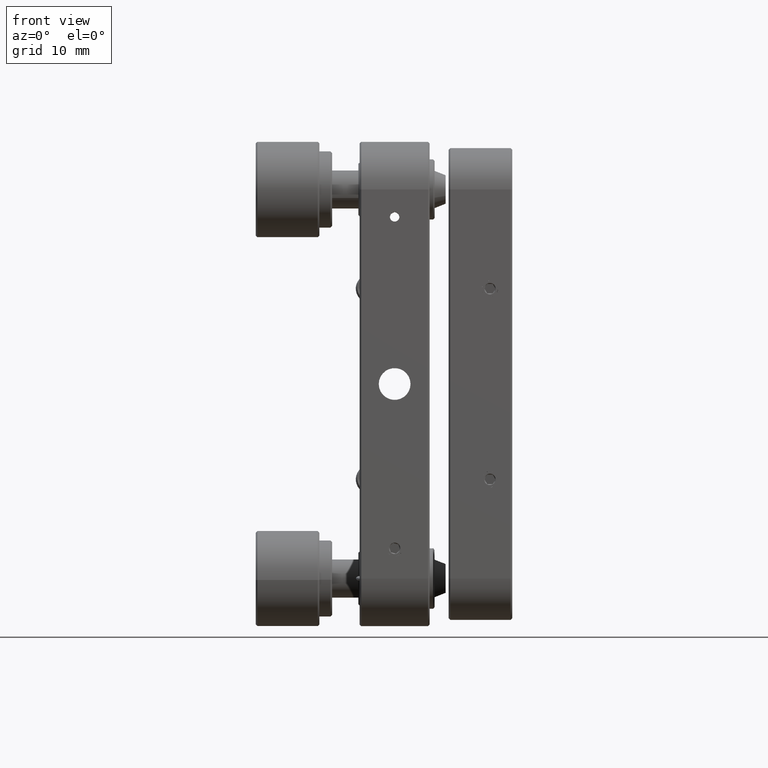
[diagram: clean part render]
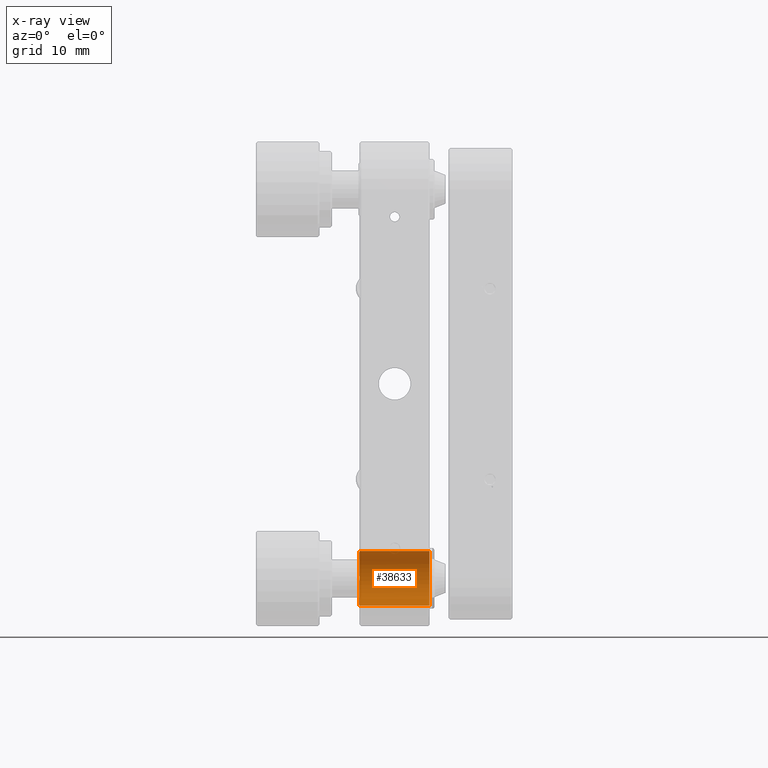
[diagram: x-ray — body ghosted, one internal face saturated and labeled with its STEP entity id]
A machine part, front view, then the same camera in x-ray: the body is ghosted and one INTERNAL B-rep face — a face not visible from any outside direction — is saturated and labeled: STEP entity #38633.
In plain terms, the highlighted face is a freeform B-spline surface patch.
Its self-contained STEP definition (entity closure, byte-faithful):
#31 = CARTESIAN_POINT ( 'NONE',  ( 5.499999999999999112, 33.22074554546956193, -27.13962722726521193 ) ) ;
#1410 = CARTESIAN_POINT ( 'NONE',  ( -5.500000000000001776, 30.60000000000001563, -26.29999999999999716 ) ) ;
#1648 = CARTESIAN_POINT ( 'NONE',  ( -5.500000000000000888, 33.22074554546957614, -27.13962722726523680 ) ) ;
#2282 = DIRECTION ( 'NONE',  ( -1.000000000000000000, 0.000000000000000000, 0.000000000000000000 ) ) ;
#5007 = CARTESIAN_POINT ( 'NONE',  ( -6.601200000000005730, 26.30000000000001492, -34.89999999999999147 ) ) ;
#5014 = CARTESIAN_POINT ( 'NONE',  ( -5.500000000000001776, 31.65349036446538733, -26.39235857689802245 ) ) ;
#5250 = CARTESIAN_POINT ( 'NONE',  ( -5.500000000000002665, 30.60000000000001563, -34.89999999999999858 ) ) ;
#5492 = CARTESIAN_POINT ( 'NONE',  ( -5.500000000000000000, 31.10675985985036363, -34.89999999999999147 ) ) ;
#5543 = CARTESIAN_POINT ( 'NONE',  ( 5.500000000000000000, 34.80764142310197684, -31.65349036446535180 ) ) ;
#5726 = CARTESIAN_POINT ( 'NONE',  ( -5.500000000000000888, 34.80764142310196974, -31.65349036446535891 ) ) ;
#6032 = CARTESIAN_POINT ( 'NONE',  ( -5.500000000000001776, 30.60000000000001563, -26.29999999999999716 ) ) ;
#7874 = B_SPLINE_CURVE_WITH_KNOTS ( 'NONE', 3,
 ( #18974, #44591, #11777, #18247, #31, #26906, #42191, #30504, #45297, #13207, #5543, #12971, #30971, #45067, #41710, #34543, #20399, #23527 ),
 .UNSPECIFIED., .F., .F.,
 ( 4, 2, 2, 2, 2, 2, 2, 2, 4 ),
 ( 0.000000000000000000, 1.688606051304519129, 3.377212102609038258, 5.065818153913557609, 6.754424205218076516, 8.443030256522582988, 10.13163630782709035, 11.82024235913159771, 13.50884841043610507 ),
 .UNSPECIFIED. ) ;
#7888 = CARTESIAN_POINT ( 'NONE',  ( -6.601200000000003953, 30.60000000000001563, -26.29999999999999716 ) ) ;
#8372 = CARTESIAN_POINT ( 'NONE',  ( -6.601200000000003953, 30.60000000000001563, -34.89999999999999147 ) ) ;
#8601 = ORIENTED_EDGE ( 'NONE', *, *, #13437, .F. ) ;
#9469 = CARTESIAN_POINT ( 'NONE',  ( -2.602085213965210642E-15, 30.60000000000001563, -26.29999999999999716 ) ) ;
#11777 = CARTESIAN_POINT ( 'NONE',  ( 5.499999999999999112, 31.65349036446538733, -26.39235857689802955 ) ) ;
#12194 = CARTESIAN_POINT ( 'NONE',  ( 6.601199999999997736, 26.30000000000001492, -26.29999999999999716 ) ) ;
#12431 = CARTESIAN_POINT ( 'NONE',  ( 6.601199999999997736, 26.30000000000001492, -34.89999999999999147 ) ) ;
#12438 = CARTESIAN_POINT ( 'NONE',  ( -5.500000000000002665, 31.65349036446539444, -34.80764142310196263 ) ) ;
#12971 = CARTESIAN_POINT ( 'NONE',  ( 5.500000000000000000, 34.38853796603493151, -32.71212413776674310 ) ) ;
#13207 = CARTESIAN_POINT ( 'NONE',  ( 5.500000000000000000, 34.90000000000001279, -31.10675985985035652 ) ) ;
#13437 = EDGE_CURVE ( 'NONE', #24753, #34148, #7874, .T. ) ;
#15519 = CARTESIAN_POINT ( 'NONE',  ( 5.499999999999999112, 30.60000000000001918, -26.30000000000000071 ) ) ;
#15552 = FACE_OUTER_BOUND ( 'NONE', #35827, .T. ) ;
#16268 = CARTESIAN_POINT ( 'NONE',  ( -5.500000000000001776, 34.38853796603493862, -32.71212413776674310 ) ) ;
#16384 = EDGE_CURVE ( 'NONE', #28298, #34148, #34790, .T. ) ;
#17017 = ORIENTED_EDGE ( 'NONE', *, *, #30222, .F. ) ;
#17305 = VECTOR ( 'NONE', #35665, 1000.000000000000000 ) ;
#18247 = CARTESIAN_POINT ( 'NONE',  ( 5.499999999999998224, 32.71212413776675731, -26.81146203396506777 ) ) ;
#18910 = CARTESIAN_POINT ( 'NONE',  ( 6.601199999999998624, 30.60000000000001563, -34.89999999999999147 ) ) ;
#18974 = CARTESIAN_POINT ( 'NONE',  ( 5.499999999999999112, 30.60000000000001918, -26.30000000000000071 ) ) ;
#19622 = CARTESIAN_POINT ( 'NONE',  ( 6.601199999999998624, 26.30000000000001847, -30.59999999999999432 ) ) ;
#19735 = B_SPLINE_CURVE_WITH_KNOTS ( 'NONE', 3,
 ( #5250, #5492, #12438, #23237, #27086, #19869, #16268, #5726, #41898, #41659, #30919, #23474, #37837, #1648, #31152, #5014, #33370, #1410 ),
 .UNSPECIFIED., .F., .F.,
 ( 4, 2, 2, 2, 2, 2, 2, 2, 4 ),
 ( -13.50884841043610507, -11.82024235913159238, -10.13163630782707969, -8.443030256522565224, -6.754424205218052535, -5.065818153913539845, -3.377212102609025379, -1.688606051304512690, 0.000000000000000000 ),
 .UNSPECIFIED. ) ;
#19869 = CARTESIAN_POINT ( 'NONE',  ( -5.500000000000000888, 34.06037277273479447, -33.22074554546955483 ) ) ;
#20399 = CARTESIAN_POINT ( 'NONE',  ( 5.500000000000000888, 31.10675985985037073, -34.90000000000000568 ) ) ;
#20509 = ORIENTED_EDGE ( 'NONE', *, *, #16384, .T. ) ;
#22998 = CARTESIAN_POINT ( 'NONE',  ( -6.601200000000003953, 26.30000000000001847, -30.59999999999999432 ) ) ;
#23237 = CARTESIAN_POINT ( 'NONE',  ( -5.500000000000000888, 32.71212413776674310, -34.38853796603491020 ) ) ;
#23474 = CARTESIAN_POINT ( 'NONE',  ( -5.500000000000000888, 34.38853796603493151, -28.48787586223326329 ) ) ;
#23527 = CARTESIAN_POINT ( 'NONE',  ( 5.499999999999999112, 30.60000000000001563, -34.89999999999999858 ) ) ;
#24753 = VERTEX_POINT ( 'NONE', #15519 ) ;
#26131 = CARTESIAN_POINT ( 'NONE',  ( -6.601200000000003953, 26.30000000000001847, -30.59999999999999432 ) ) ;
#26503 = ORIENTED_EDGE ( 'NONE', *, *, #45153, .T. ) ;
#26906 = CARTESIAN_POINT ( 'NONE',  ( 5.499999999999999112, 34.06037277273480157, -27.97925445453045867 ) ) ;
#27079 = CARTESIAN_POINT ( 'NONE',  ( 6.601199999999997736, 34.90000000000001279, -34.89999999999999147 ) ) ;
#27086 = CARTESIAN_POINT ( 'NONE',  ( -5.500000000000001776, 33.22074554546956904, -34.06037277273480157 ) ) ;
#27390 = CARTESIAN_POINT ( 'NONE',  ( -2.602085213965210642E-15, 30.60000000000001563, -34.89999999999999147 ) ) ;
#28298 = VERTEX_POINT ( 'NONE', #28547 ) ;
#28471 =( BOUNDED_SURFACE ( )  B_SPLINE_SURFACE ( 1, 2, ( 
 ( #19622, #12194, #44772, #45474, #37829, #27079, #18910, #12431, #30444 ),
 ( #26131, #40703, #7888, #41417, #41183, #37118, #8372, #5007, #22998 ) ),
 .UNSPECIFIED., .F., .F., .F. ) 
 B_SPLINE_SURFACE_WITH_KNOTS ( ( 2, 2 ),
 ( 3, 2, 2, 2, 3 ),
 ( 0.000000000000000000, 13.20240000000000435 ),
 ( 0.000000000000000000, 1.570796326794896558, 3.141592653589793116, 4.712388980384689674, 6.283185307179586232 ),
 .UNSPECIFIED. ) 
 GEOMETRIC_REPRESENTATION_ITEM ( )  RATIONAL_B_SPLINE_SURFACE ( (
 ( 1.000000000000000000, 0.7071067811865475727, 1.000000000000000000, 0.7071067811865475727, 1.000000000000000000, 0.7071067811865475727, 1.000000000000000000, 0.7071067811865475727, 1.000000000000000000),
 ( 1.000000000000000000, 0.7071067811865475727, 1.000000000000000000, 0.7071067811865475727, 1.000000000000000000, 0.7071067811865475727, 1.000000000000000000, 0.7071067811865475727, 1.000000000000000000) ) ) 
 REPRESENTATION_ITEM ( '' )  SURFACE ( )  );
#28547 = CARTESIAN_POINT ( 'NONE',  ( -5.500000000000002665, 30.60000000000001563, -34.89999999999999858 ) ) ;
#30222 = EDGE_CURVE ( 'NONE', #28298, #35877, #19735, .T. ) ;
#30444 = CARTESIAN_POINT ( 'NONE',  ( 6.601199999999998624, 26.30000000000001847, -30.59999999999999432 ) ) ;
#30504 = CARTESIAN_POINT ( 'NONE',  ( 5.499999999999999112, 34.80764142310196263, -29.54650963553464749 ) ) ;
#30919 = CARTESIAN_POINT ( 'NONE',  ( -5.500000000000001776, 34.80764142310196974, -29.54650963553463683 ) ) ;
#30971 = CARTESIAN_POINT ( 'NONE',  ( 5.500000000000000000, 34.06037277273480157, -33.22074554546952641 ) ) ;
#31152 = CARTESIAN_POINT ( 'NONE',  ( -5.500000000000001776, 32.71212413776675731, -26.81146203396507488 ) ) ;
#33370 = CARTESIAN_POINT ( 'NONE',  ( -5.500000000000001776, 31.10675985985037784, -26.30000000000001137 ) ) ;
#34148 = VERTEX_POINT ( 'NONE', #37355 ) ;
#34543 = CARTESIAN_POINT ( 'NONE',  ( 5.500000000000000000, 31.65349036446539444, -34.80764142310197684 ) ) ;
#34790 = LINE ( 'NONE', #27390, #17305 ) ;
#35103 = LINE ( 'NONE', #9469, #35705 ) ;
#35665 = DIRECTION ( 'NONE',  ( 1.000000000000000000, -0.000000000000000000, -0.000000000000000000 ) ) ;
#35705 = VECTOR ( 'NONE', #2282, 1000.000000000000000 ) ;
#35827 = EDGE_LOOP ( 'NONE', ( #8601, #26503, #17017, #20509 ) ) ;
#35877 = VERTEX_POINT ( 'NONE', #6032 ) ;
#37118 = CARTESIAN_POINT ( 'NONE',  ( -6.601200000000005730, 34.90000000000001279, -34.89999999999999147 ) ) ;
#37355 = CARTESIAN_POINT ( 'NONE',  ( 5.499999999999999112, 30.60000000000001563, -34.89999999999999858 ) ) ;
#37829 = CARTESIAN_POINT ( 'NONE',  ( 6.601199999999998624, 34.90000000000001279, -30.59999999999999432 ) ) ;
#37837 = CARTESIAN_POINT ( 'NONE',  ( -5.500000000000001776, 34.06037277273480157, -27.97925445453047288 ) ) ;
#38633 = ADVANCED_FACE ( 'NONE', ( #15552 ), #28471, .T. ) ;
#40703 = CARTESIAN_POINT ( 'NONE',  ( -6.601200000000005730, 26.30000000000001492, -26.29999999999999716 ) ) ;
#41183 = CARTESIAN_POINT ( 'NONE',  ( -6.601200000000003953, 34.90000000000001279, -30.59999999999999432 ) ) ;
#41417 = CARTESIAN_POINT ( 'NONE',  ( -6.601200000000005730, 34.90000000000001279, -26.29999999999999716 ) ) ;
#41659 = CARTESIAN_POINT ( 'NONE',  ( -5.500000000000000888, 34.90000000000000568, -30.09324014014964632 ) ) ;
#41710 = CARTESIAN_POINT ( 'NONE',  ( 5.500000000000000000, 32.71212413776675731, -34.38853796603492441 ) ) ;
#41898 = CARTESIAN_POINT ( 'NONE',  ( -5.500000000000001776, 34.89999999999999858, -31.10675985985036718 ) ) ;
#42191 = CARTESIAN_POINT ( 'NONE',  ( 5.499999999999999112, 34.38853796603493151, -28.48787586223326329 ) ) ;
#44591 = CARTESIAN_POINT ( 'NONE',  ( 5.500000000000000888, 31.10675985985038494, -26.29999999999999716 ) ) ;
#44772 = CARTESIAN_POINT ( 'NONE',  ( 6.601199999999998624, 30.60000000000001563, -26.29999999999999716 ) ) ;
#45067 = CARTESIAN_POINT ( 'NONE',  ( 5.500000000000000000, 33.22074554546957614, -34.06037277273477315 ) ) ;
#45153 = EDGE_CURVE ( 'NONE', #24753, #35877, #35103, .T. ) ;
#45297 = CARTESIAN_POINT ( 'NONE',  ( 5.499999999999999112, 34.89999999999999147, -30.09324014014963211 ) ) ;
#45474 = CARTESIAN_POINT ( 'NONE',  ( 6.601199999999997736, 34.90000000000001279, -26.29999999999999716 ) ) ;